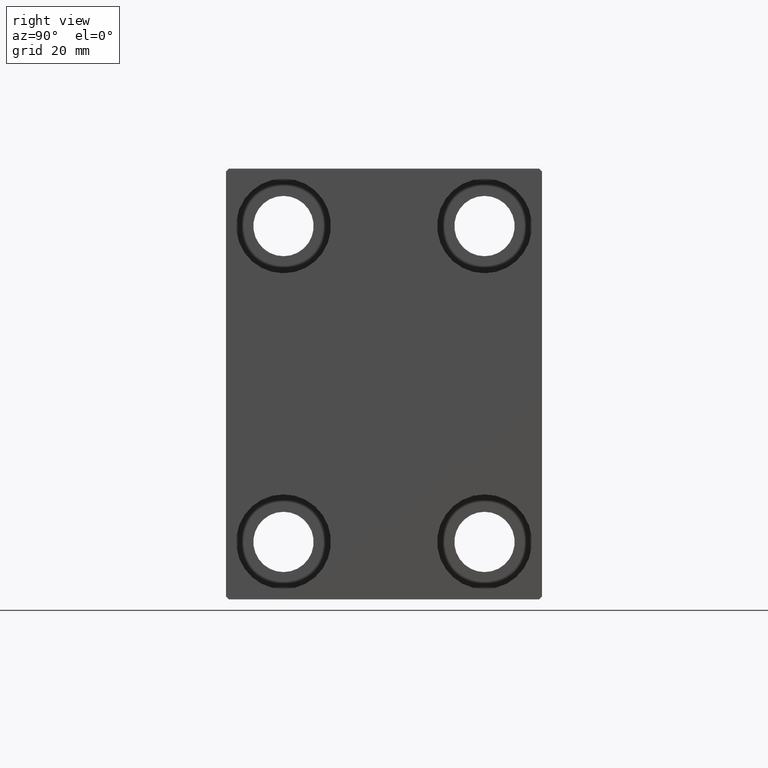
[diagram: clean part render]
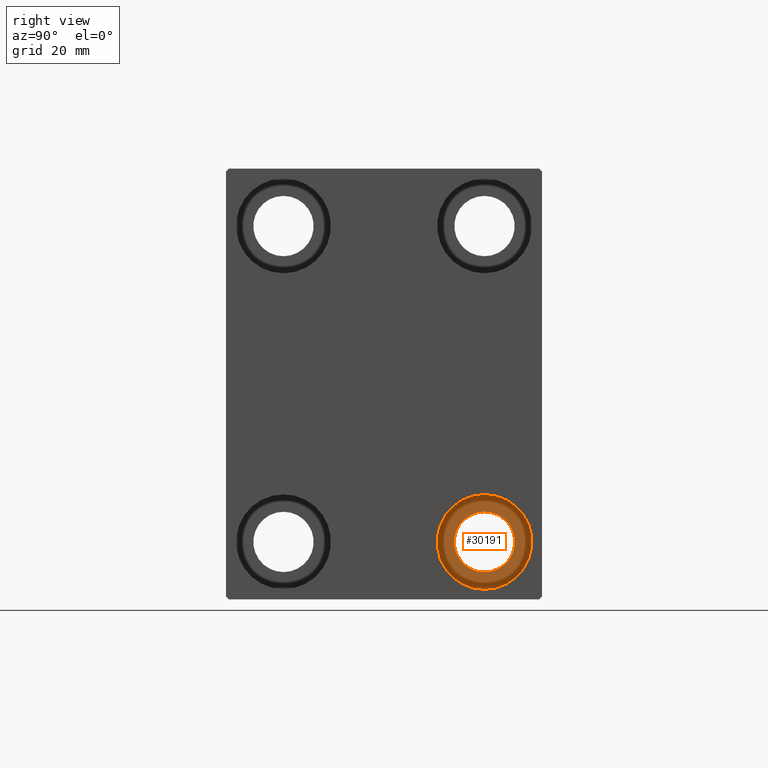
[diagram: same view with one face highlighted and labeled with its STEP entity id]
A machine part, right view. The second image highlights one B-rep face of the part: STEP entity #30191.
In plain terms, the highlighted planar face has unit normal (1, 0, 0).
Its self-contained STEP definition (entity closure, byte-faithful):
#193 = EDGE_CURVE ( 'NONE', #32508, #1597, #14810, .T. ) ;
#441 = CARTESIAN_POINT ( 'NONE',  ( 64.00000000000000000, 17.49999999999999645, -27.50000000000000355 ) ) ;
#1597 = VERTEX_POINT ( 'NONE', #8812 ) ;
#1787 = CARTESIAN_POINT ( 'NONE',  ( 64.00000000000000000, 17.49999999999999645, -27.50000000000000355 ) ) ;
#3028 = DIRECTION ( 'NONE',  ( 1.000000000000000000, 0.000000000000000000, -0.000000000000000000 ) ) ;
#3474 = ORIENTED_EDGE ( 'NONE', *, *, #9495, .F. ) ;
#4030 = EDGE_LOOP ( 'NONE', ( #7562, #41729 ) ) ;
#6354 = CARTESIAN_POINT ( 'NONE',  ( 64.00000000000000000, 17.49999999999999645, -27.50000000000000355 ) ) ;
#6759 = DIRECTION ( 'NONE',  ( 0.000000000000000000, 0.000000000000000000, -1.000000000000000000 ) ) ;
#6800 = PLANE ( 'NONE',  #32390 ) ;
#7562 = ORIENTED_EDGE ( 'NONE', *, *, #193, .T. ) ;
#7697 = AXIS2_PLACEMENT_3D ( 'NONE', #1787, #28700, #42272 ) ;
#8216 = CARTESIAN_POINT ( 'NONE',  ( 64.00000000000000000, 17.49999999999999645, -22.25000000000000355 ) ) ;
#8812 = CARTESIAN_POINT ( 'NONE',  ( 64.00000000000000000, 17.49999999999999645, -32.75000000000000000 ) ) ;
#9495 = EDGE_CURVE ( 'NONE', #35245, #30954, #22002, .T. ) ;
#11592 = EDGE_LOOP ( 'NONE', ( #3474, #25152 ) ) ;
#12817 = DIRECTION ( 'NONE',  ( -1.000000000000000000, -0.000000000000000000, -0.000000000000000000 ) ) ;
#13820 = EDGE_CURVE ( 'NONE', #1597, #32508, #24233, .T. ) ;
#14015 = DIRECTION ( 'NONE',  ( -1.000000000000000000, -0.000000000000000000, -0.000000000000000000 ) ) ;
#14664 = DIRECTION ( 'NONE',  ( 0.000000000000000000, 0.000000000000000000, 1.000000000000000000 ) ) ;
#14810 = CIRCLE ( 'NONE', #7697, 5.249999999999997335 ) ;
#18897 = CIRCLE ( 'NONE', #40909, 8.250000000000000000 ) ;
#22002 = CIRCLE ( 'NONE', #24872, 8.250000000000000000 ) ;
#24233 = CIRCLE ( 'NONE', #39147, 5.249999999999997335 ) ;
#24872 = AXIS2_PLACEMENT_3D ( 'NONE', #441, #14015, #14664 ) ;
#25152 = ORIENTED_EDGE ( 'NONE', *, *, #29461, .F. ) ;
#26348 = CARTESIAN_POINT ( 'NONE',  ( 64.00000000000000000, 17.49999999999999645, -27.50000000000000355 ) ) ;
#28700 = DIRECTION ( 'NONE',  ( -1.000000000000000000, -0.000000000000000000, -0.000000000000000000 ) ) ;
#29461 = EDGE_CURVE ( 'NONE', #30954, #35245, #18897, .T. ) ;
#29717 = FACE_BOUND ( 'NONE', #4030, .T. ) ;
#30191 = ADVANCED_FACE ( 'NONE', ( #40169, #29717 ), #6800, .T. ) ;
#30954 = VERTEX_POINT ( 'NONE', #33562 ) ;
#32390 = AXIS2_PLACEMENT_3D ( 'NONE', #6354, #3028, #43290 ) ;
#32508 = VERTEX_POINT ( 'NONE', #8216 ) ;
#33562 = CARTESIAN_POINT ( 'NONE',  ( 64.00000000000000000, 17.49999999999999645, -19.25000000000000355 ) ) ;
#35245 = VERTEX_POINT ( 'NONE', #36959 ) ;
#36610 = DIRECTION ( 'NONE',  ( 0.000000000000000000, 0.000000000000000000, 1.000000000000000000 ) ) ;
#36959 = CARTESIAN_POINT ( 'NONE',  ( 64.00000000000000000, 17.49999999999999645, -35.75000000000000711 ) ) ;
#39147 = AXIS2_PLACEMENT_3D ( 'NONE', #26348, #43685, #6759 ) ;
#40169 = FACE_OUTER_BOUND ( 'NONE', #11592, .T. ) ;
#40909 = AXIS2_PLACEMENT_3D ( 'NONE', #43282, #12817, #36610 ) ;
#41729 = ORIENTED_EDGE ( 'NONE', *, *, #13820, .T. ) ;
#42272 = DIRECTION ( 'NONE',  ( 0.000000000000000000, 0.000000000000000000, -1.000000000000000000 ) ) ;
#43282 = CARTESIAN_POINT ( 'NONE',  ( 64.00000000000000000, 17.49999999999999645, -27.50000000000000355 ) ) ;
#43290 = DIRECTION ( 'NONE',  ( 0.000000000000000000, 0.000000000000000000, 1.000000000000000000 ) ) ;
#43685 = DIRECTION ( 'NONE',  ( -1.000000000000000000, -0.000000000000000000, -0.000000000000000000 ) ) ;